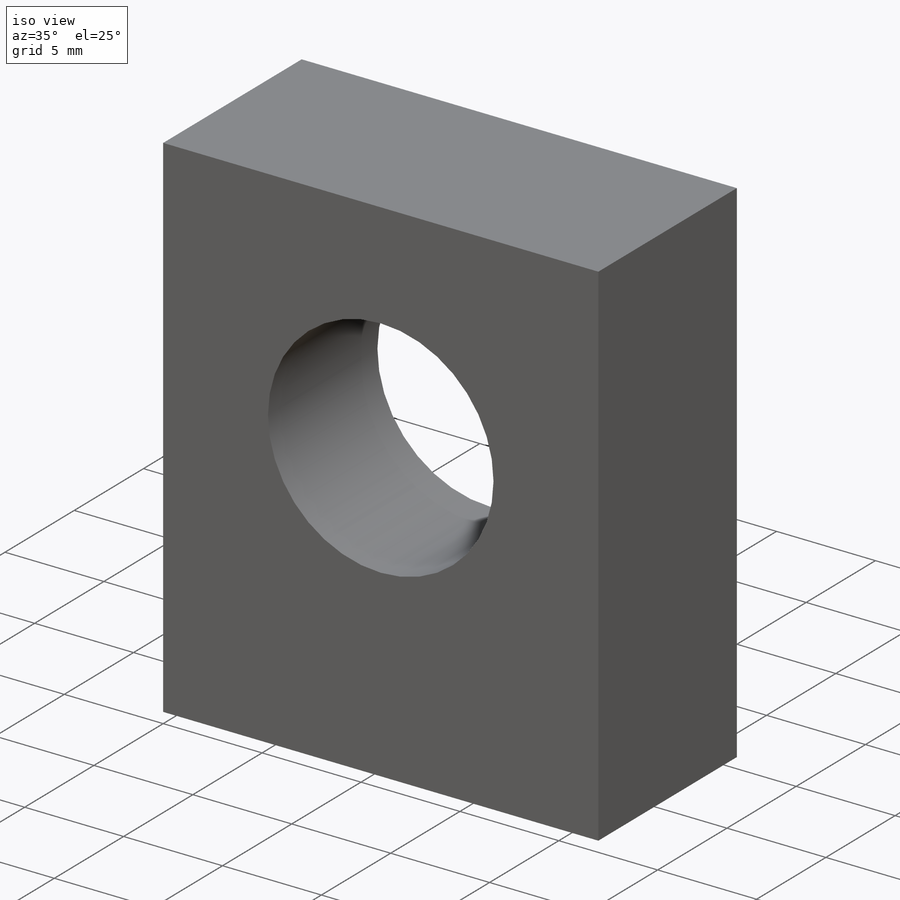
[diagram: iso view]
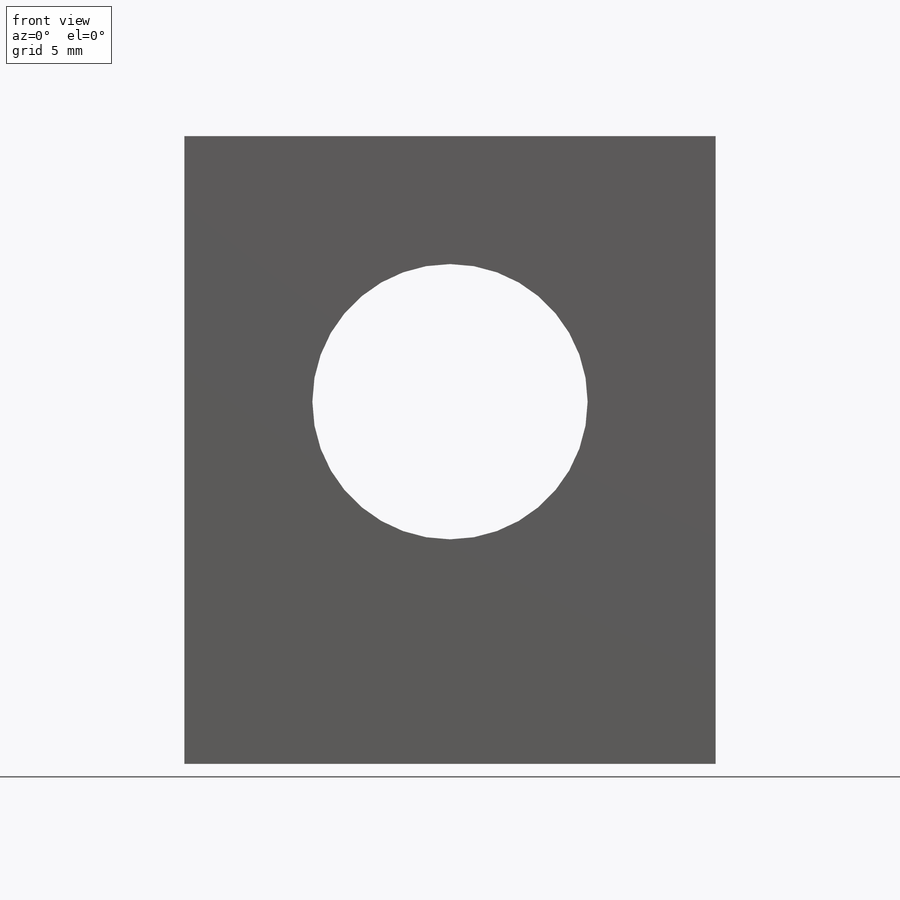
[diagram: front view]
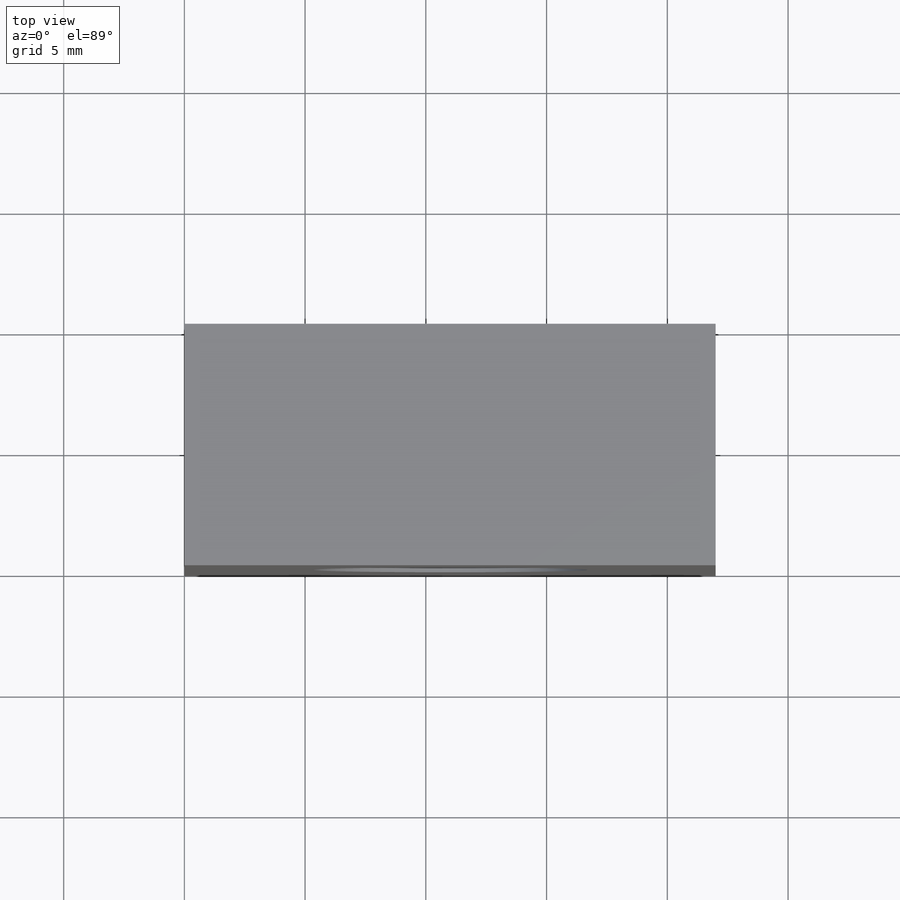
[diagram: top view]
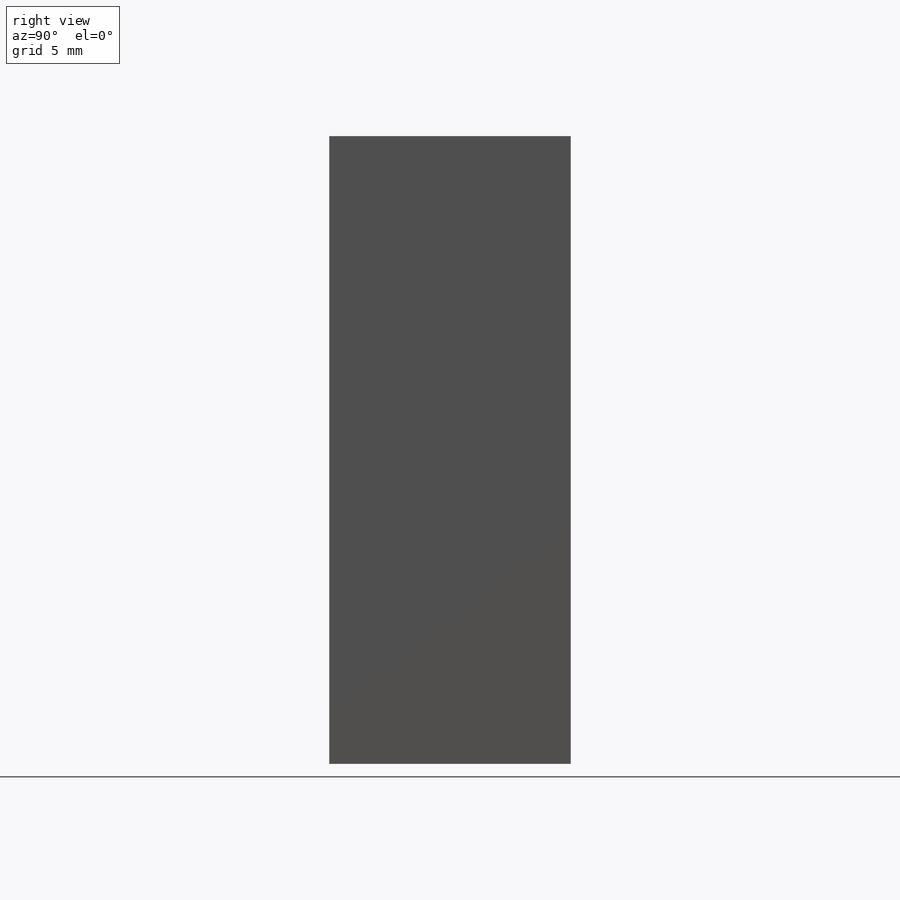
[diagram: right view]
SOLIDWORKS PART (.sldprt)
format: sldprt  version: not decoded by parser v0  size: 257,536 bytes
history: native  units: mm
features: sketch x5, thread x3, cut_extrude x2, material x1, extrude x1, hole x1 (+11 scaffold rows collapsed)
feature tree (24):
  scaffold x11  (default folders/planes/origin — collapsed)
  material  "6061 Alloy"
  sketch  "Sketch1"  dims[D1=22.0mm D2=10.0mm]
  extrude  "Boss-Extrude1"  Depth=26mm
  sketch  "Sketch7"  dims[c1.D1=11.4mm c1.D2=15.0mm c1.D3=11.0mm c2.D2=15.0mm c2.D3=11.0mm]
  cut_extrude  "Cut-Extrude1"  [1 undecoded]
  sketch  "Sketch9"  dims[D1=16.1mm]
  cut_extrude  "Cut-Extrude3"  Depth=2.1mm
  hole  "M3x0.5 Tapped Hole1"  Diameter=2.5mm Depth=5mm
  sketch  "Sketch11"  dims[D1=3.0mm D2=3.0mm D3=3.0mm D4=3.0mm D5=11.0mm D6=3.0mm]
  sketch  "Sketch10"  dims[hole-wizard template sketch: 46 standard entries collapsed; hole parameters above]
  thread  "Hole Thread6"  Diameter=5mm  [1 undecoded]
  thread  "Hole Thread7"  Diameter=5mm  [1 undecoded]
  thread  "Hole Thread8"  Diameter=5mm  [1 undecoded]
decode coverage: 11 of 12 modeling features carry decoded parameters
note: ~ marks probable driven/reference dimensions
note: 4 parameter values undecoded
note: suppression state not decoded; provenance and decode notes live in map.json
